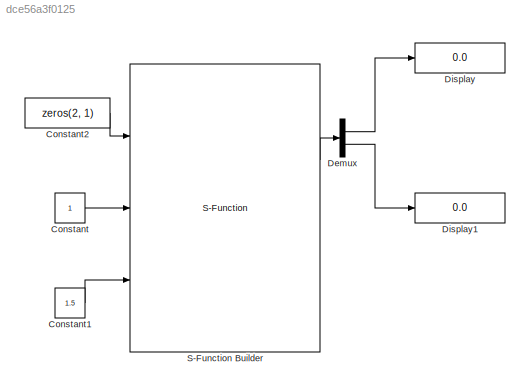
MODEL slx_dce56a3f0125
KIND model
CONFIG AbsTol = auto
CONFIG EnableMultiTasking = off
CONFIG FixedStep = auto
CONFIG MaxStep = auto
CONFIG MinStep = auto
CONFIG RelTol = 1e-3
CONFIG SampleTimeConstraint = Unconstrained
CONFIG Solver = VariableStepAuto
CONFIG SolverName = VariableStepAuto
CONFIG StartTime = 0.0
CONFIG StopTime = 10.0
BLOCK [Constant] Constant
BLOCK [Constant] Constant1
  Value = 1.5
BLOCK [Constant] Constant2
  Value = zeros(2, 1)
BLOCK [Demux] Demux
  Outputs = 2
  Ports = [1, 2]
BLOCK [Display] Display
  Decimation = 1
  Ports = [1]
BLOCK [Display] Display1
  Decimation = 1
  Ports = [1]
BLOCK [S-Function] S-Function Builder
  CopyFcn = set_param(gcbh,'LinkStatus','none')
  EnableBusSupport = off
  FunctionName = test1sfun
  InitFcn = try, set_param(gcb,'FunctionName','test1sfun'), end
  OpenFcn = sfunctionwizard(gcbh)
  Ports = [3, 2]
  PreSaveFcn = try, set_param(gcb,'FunctionName','test1sfun'), end
  SFcnIsStateOwnerBlock = off
  SFunctionDeploymentMode = off
  SFunctionModules = test1sfun_wrapper test1 test1_EVAL_CODE test1_EVAL_CODE_Call BLASReplacement Bounds Constraints Flipper Indexlist LAPACKReplacement Matrices MessageHandling Options OQPinterface QProblem QProblemB SolutionAnalysis SparseSolver SQProblem SQProblemSchur SubjectTo Utils
LINE Constant1:1 -> S-Function Builder:3
LINE Constant2:1 -> S-Function Builder:1
LINE Constant:1 -> S-Function Builder:2
LINE Demux:1 -> Display:1
LINE Demux:2 -> Display1:1
LINE S-Function Builder:1 -> Demux:1
